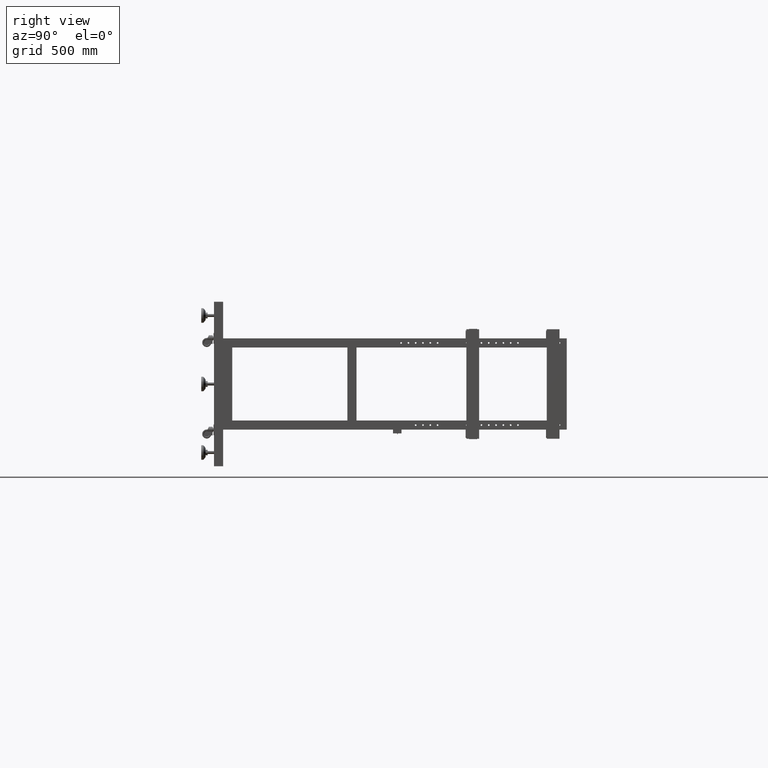
[diagram: clean part render]
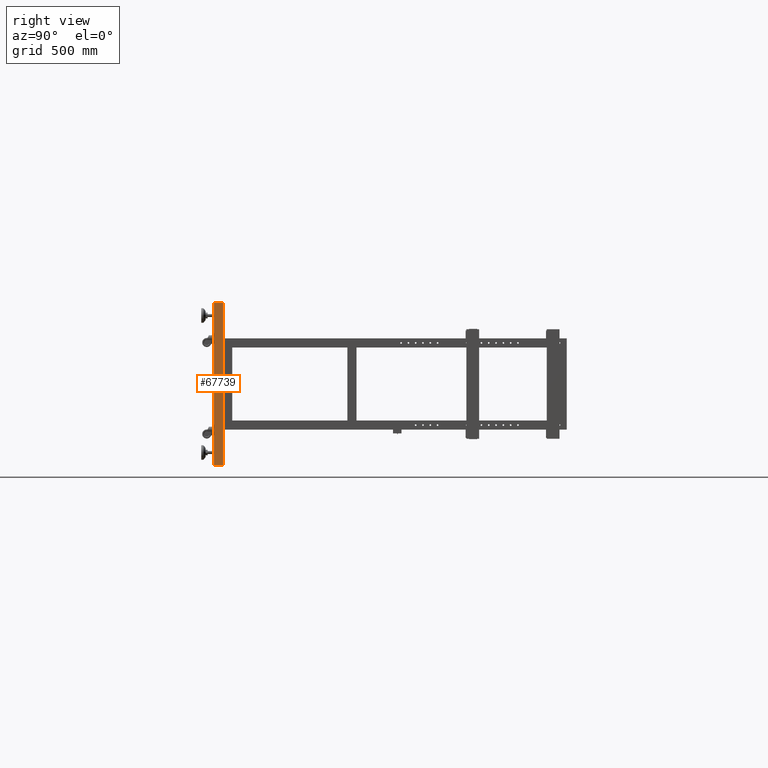
[diagram: same view with one face highlighted and labeled with its STEP entity id]
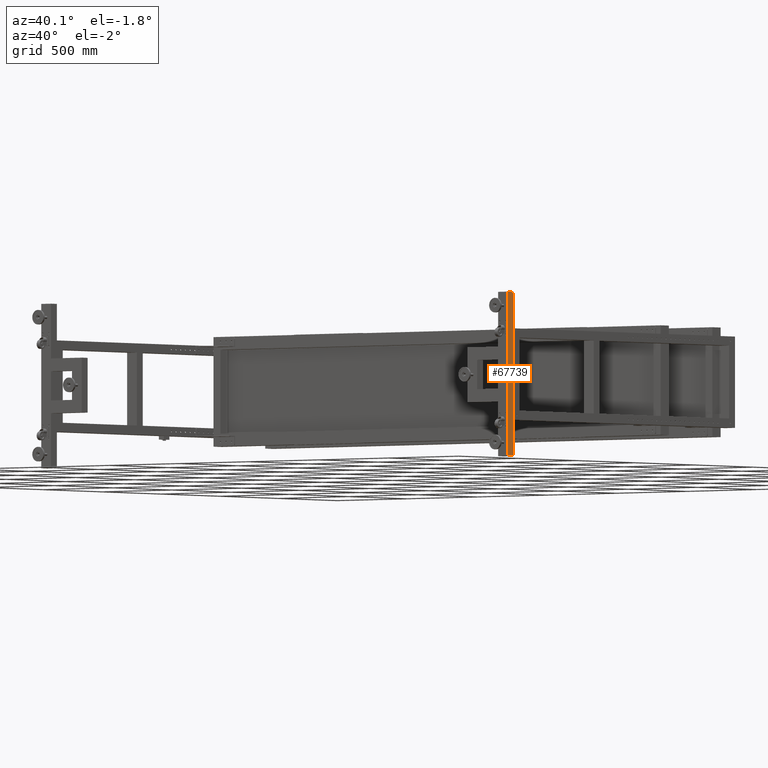
[diagram: same view with one face highlighted and labeled with its STEP entity id]
A machine part, right view. The second image highlights one B-rep face of the part: STEP entity #67739.
A second angle (auxiliary view) of the same face is appended — the face is thin or edge-on in the first view.
In plain terms, the highlighted planar face has unit normal (1, -0, 0).
Its self-contained STEP definition (entity closure, byte-faithful):
#2 = CARTESIAN_POINT ( 'NONE',  ( 2001.827512562814491, -894.5589195979868009, -448.0000000000000568 ) ) ;
#507 = VECTOR ( 'NONE', #20702, 1000.000000000000000 ) ;
#1709 = LINE ( 'NONE', #26229, #7242 ) ;
#2944 = CARTESIAN_POINT ( 'NONE',  ( 2001.827512562814491, -894.5589195979868009, -448.0000000000000568 ) ) ;
#3358 = PLANE ( 'NONE',  #5795 ) ;
#5525 = ORIENTED_EDGE ( 'NONE', *, *, #14963, .T. ) ;
#5795 = AXIS2_PLACEMENT_3D ( 'NONE', #2944, #52808, #63705 ) ;
#7242 = VECTOR ( 'NONE', #50780, 1000.000000000000000 ) ;
#13759 = DIRECTION ( 'NONE',  ( 0.000000000000000000, 0.000000000000000000, 1.000000000000000000 ) ) ;
#14324 = LINE ( 'NONE', #46091, #64567 ) ;
#14727 = DIRECTION ( 'NONE',  ( 0.000000000000000000, 0.000000000000000000, 1.000000000000000000 ) ) ;
#14963 = EDGE_CURVE ( 'NONE', #48045, #78480, #14324, .T. ) ;
#15903 = CARTESIAN_POINT ( 'NONE',  ( 2001.827512562814491, -844.5589195979868009, 447.9999999999999432 ) ) ;
#16218 = FACE_OUTER_BOUND ( 'NONE', #41922, .T. ) ;
#18386 = ORIENTED_EDGE ( 'NONE', *, *, #35971, .F. ) ;
#20702 = DIRECTION ( 'NONE',  ( -1.007857950571557086E-16, -1.000000000000000000, 0.000000000000000000 ) ) ;
#21375 = CARTESIAN_POINT ( 'NONE',  ( 2001.827512562814491, -894.5589195979868009, -448.0000000000000568 ) ) ;
#22466 = VECTOR ( 'NONE', #13759, 1000.000000000000000 ) ;
#26229 = CARTESIAN_POINT ( 'NONE',  ( 2001.827512562814491, -894.5589195979868009, 447.9999999999999432 ) ) ;
#26739 = CARTESIAN_POINT ( 'NONE',  ( 2001.827512562814491, -894.5589195979868009, -448.0000000000000568 ) ) ;
#31341 = ORIENTED_EDGE ( 'NONE', *, *, #76028, .T. ) ;
#35971 = EDGE_CURVE ( 'NONE', #36287, #47069, #56754, .T. ) ;
#36287 = VERTEX_POINT ( 'NONE', #2 ) ;
#41922 = EDGE_LOOP ( 'NONE', ( #31341, #18386, #77619, #5525 ) ) ;
#46091 = CARTESIAN_POINT ( 'NONE',  ( 2001.827512562814491, -844.5589195979868009, -448.0000000000000568 ) ) ;
#47069 = VERTEX_POINT ( 'NONE', #63570 ) ;
#48045 = VERTEX_POINT ( 'NONE', #55233 ) ;
#50780 = DIRECTION ( 'NONE',  ( -1.007857950571557086E-16, -1.000000000000000000, 0.000000000000000000 ) ) ;
#51279 = LINE ( 'NONE', #26739, #507 ) ;
#52808 = DIRECTION ( 'NONE',  ( 1.000000000000000000, -1.007857950571557086E-16, 0.000000000000000000 ) ) ;
#55233 = CARTESIAN_POINT ( 'NONE',  ( 2001.827512562814491, -844.5589195979868009, -448.0000000000000568 ) ) ;
#56754 = LINE ( 'NONE', #21375, #22466 ) ;
#63570 = CARTESIAN_POINT ( 'NONE',  ( 2001.827512562814491, -894.5589195979868009, 447.9999999999999432 ) ) ;
#63705 = DIRECTION ( 'NONE',  ( 1.007857950571557086E-16, 1.000000000000000000, 0.000000000000000000 ) ) ;
#64567 = VECTOR ( 'NONE', #14727, 1000.000000000000000 ) ;
#66389 = EDGE_CURVE ( 'NONE', #48045, #36287, #51279, .T. ) ;
#67739 = ADVANCED_FACE ( 'NONE', ( #16218 ), #3358, .T. ) ;
#76028 = EDGE_CURVE ( 'NONE', #78480, #47069, #1709, .T. ) ;
#77619 = ORIENTED_EDGE ( 'NONE', *, *, #66389, .F. ) ;
#78480 = VERTEX_POINT ( 'NONE', #15903 ) ;